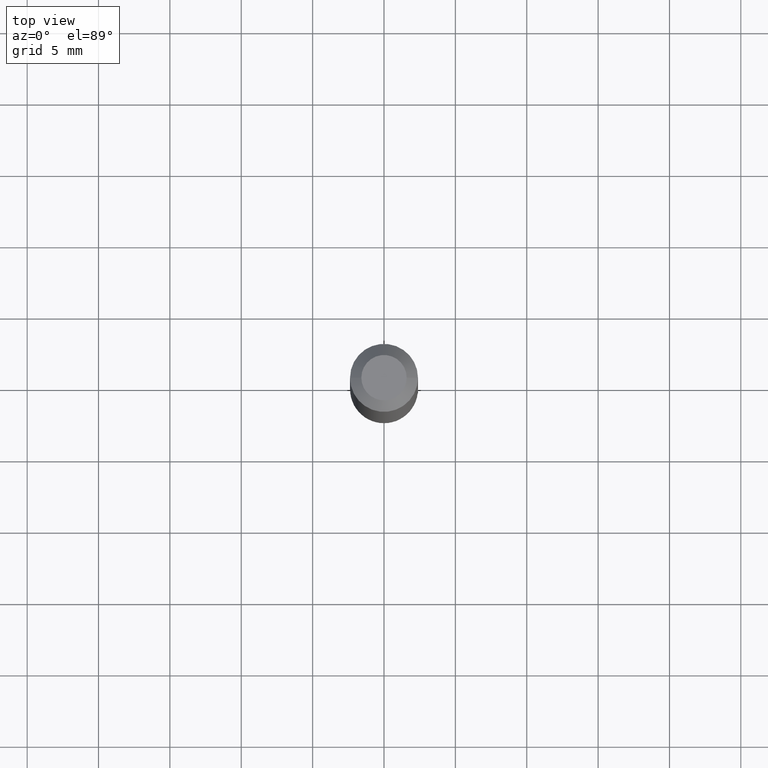
[diagram: clean part render]
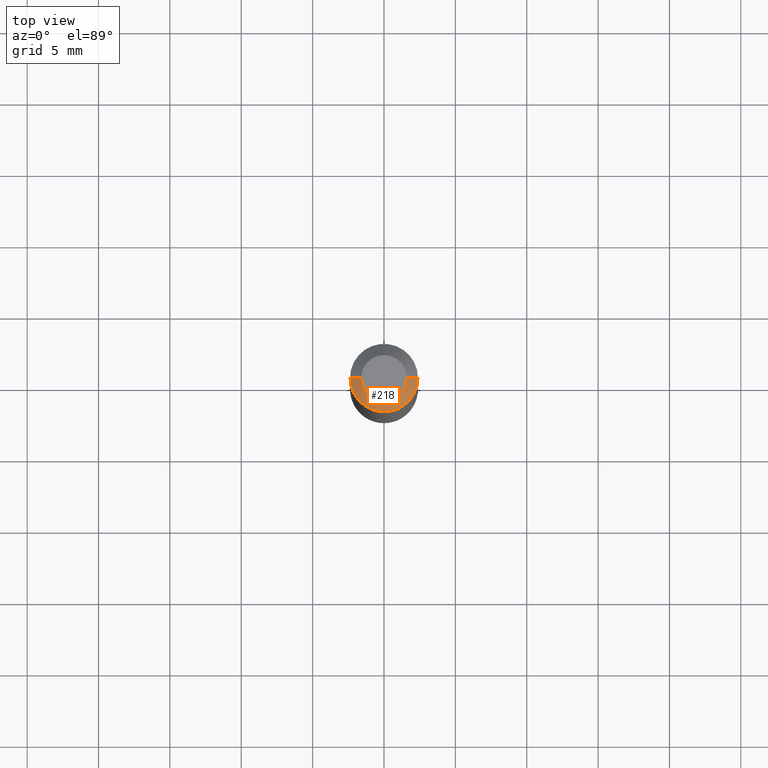
[diagram: same view with one face highlighted and labeled with its STEP entity id]
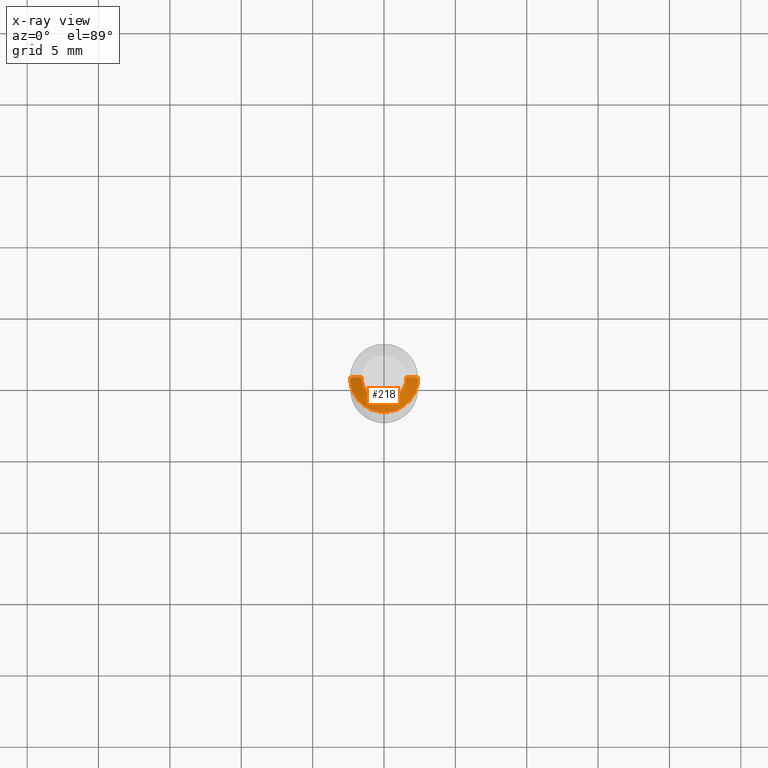
[diagram: x-ray of the same camera — body ghosted, the highlighted face saturated]
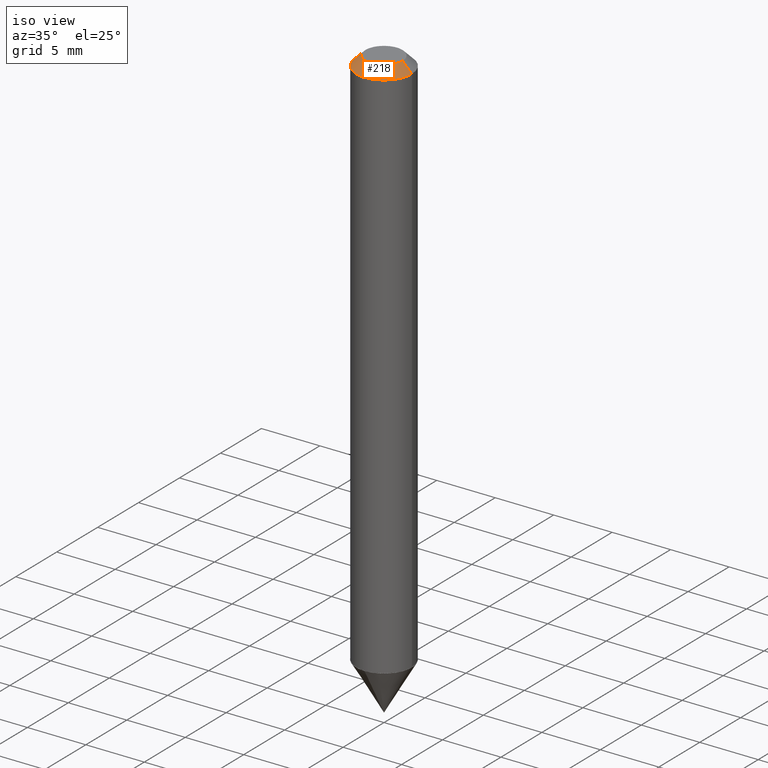
[diagram: same view with one face highlighted and labeled with its STEP entity id]
A machine part, top view. The second image highlights one B-rep face of the part: STEP entity #218.
The next image is the same camera in x-ray: the body ghosted, the highlighted face saturated — about 0% of this face is hidden behind the body in this view.
A second angle (iso view) of the same face is appended — the face is thin or edge-on in the first view.
In plain terms, the highlighted conical surface has half-angle 45 deg.
Its self-contained STEP definition (entity closure, byte-faithful):
#8 = AXIS2_PLACEMENT_3D ( 'NONE', #168, #170, #351 ) ;
#9 = CONICAL_SURFACE ( 'NONE', #8, 0.09375000000000001388, 0.7853981633974446153 ) ;
#33 = ORIENTED_EDGE ( 'NONE', *, *, #325, .T. ) ;
#52 = LINE ( 'NONE', #122, #69 ) ;
#64 = CARTESIAN_POINT ( 'NONE',  ( -0.09375000000000001388, -2.594595935758567797E-15, -0.03120000000000020673 ) ) ;
#69 = VECTOR ( 'NONE', #121, 39.37007874015748143 ) ;
#71 = DIRECTION ( 'NONE',  ( -2.445468806185136597E-29, 3.491481338843145583E-15, 1.000000000000000000 ) ) ;
#93 = CARTESIAN_POINT ( 'NONE',  ( 0.09375000000000001388, -7.635869688049943558E-16, -0.03120000000000020673 ) ) ;
#98 = VERTEX_POINT ( 'NONE', #352 ) ;
#100 = AXIS2_PLACEMENT_3D ( 'NONE', #287, #204, #225 ) ;
#109 = DIRECTION ( 'NONE',  ( -0.7071067811865449082, 2.468850131082229450E-15, -0.7071067811865501263 ) ) ;
#114 = FACE_OUTER_BOUND ( 'NONE', #341, .T. ) ;
#119 = AXIS2_PLACEMENT_3D ( 'NONE', #165, #71, #289 ) ;
#121 = DIRECTION ( 'NONE',  ( 0.7071067811865449082, -7.319954787623246579E-15, -0.7071067811865501263 ) ) ;
#122 = CARTESIAN_POINT ( 'NONE',  ( 0.09375000000000001388, -7.521059050629880343E-16, -0.03120000000000020673 ) ) ;
#139 = ORIENTED_EDGE ( 'NONE', *, *, #148, .F. ) ;
#148 = EDGE_CURVE ( 'NONE', #98, #252, #256, .T. ) ;
#154 = VERTEX_POINT ( 'NONE', #64 ) ;
#165 = CARTESIAN_POINT ( 'NONE',  ( -9.358861080966648015E-47, 1.336197326842804765E-32, 3.827021247335480313E-18 ) ) ;
#168 = CARTESIAN_POINT ( 'NONE',  ( 7.629862675297676574E-31, -1.089342177719068640E-16, -0.03120000000000020673 ) ) ;
#170 = DIRECTION ( 'NONE',  ( 2.445468806185136597E-29, -3.491481338843145583E-15, -1.000000000000000000 ) ) ;
#193 = VERTEX_POINT ( 'NONE', #93 ) ;
#196 = CARTESIAN_POINT ( 'NONE',  ( -0.09375000000000001388, 5.457185332611806524E-16, -0.03120000000000020673 ) ) ;
#204 = DIRECTION ( 'NONE',  ( -2.445468806185136597E-29, 3.491481338843145583E-15, 1.000000000000000000 ) ) ;
#218 = ADVANCED_FACE ( 'NONE', ( #114 ), #9, .T. ) ;
#225 = DIRECTION ( 'NONE',  ( 1.000000000000000000, -6.982962677686265922E-15, 0.000000000000000000 ) ) ;
#233 = ORIENTED_EDGE ( 'NONE', *, *, #386, .F. ) ;
#252 = VERTEX_POINT ( 'NONE', #269 ) ;
#255 = CIRCLE ( 'NONE', #100, 0.09375000000000001388 ) ;
#256 = CIRCLE ( 'NONE', #119, 0.06255000000000002225 ) ;
#269 = CARTESIAN_POINT ( 'NONE',  ( 0.06255000000000002225, -5.906150274117987723E-16, 3.827021247339071787E-18 ) ) ;
#279 = EDGE_CURVE ( 'NONE', #98, #154, #353, .T. ) ;
#287 = CARTESIAN_POINT ( 'NONE',  ( 7.629862675297676574E-31, -1.089342177719068640E-16, -0.03120000000000020673 ) ) ;
#289 = DIRECTION ( 'NONE',  ( 1.000000000000000000, -6.982962677686267499E-15, 4.876132606543208763E-29 ) ) ;
#300 = VECTOR ( 'NONE', #109, 39.37007874015748143 ) ;
#325 = EDGE_CURVE ( 'NONE', #154, #193, #255, .T. ) ;
#341 = EDGE_LOOP ( 'NONE', ( #233, #139, #368, #33 ) ) ;
#351 = DIRECTION ( 'NONE',  ( -1.000000000000000000, 6.982962677686265922E-15, 0.000000000000000000 ) ) ;
#352 = CARTESIAN_POINT ( 'NONE',  ( -0.06255000000000002225, 4.912514243752283606E-16, 3.827021247332235506E-18 ) ) ;
#353 = LINE ( 'NONE', #196, #300 ) ;
#368 = ORIENTED_EDGE ( 'NONE', *, *, #279, .T. ) ;
#386 = EDGE_CURVE ( 'NONE', #252, #193, #52, .T. ) ;